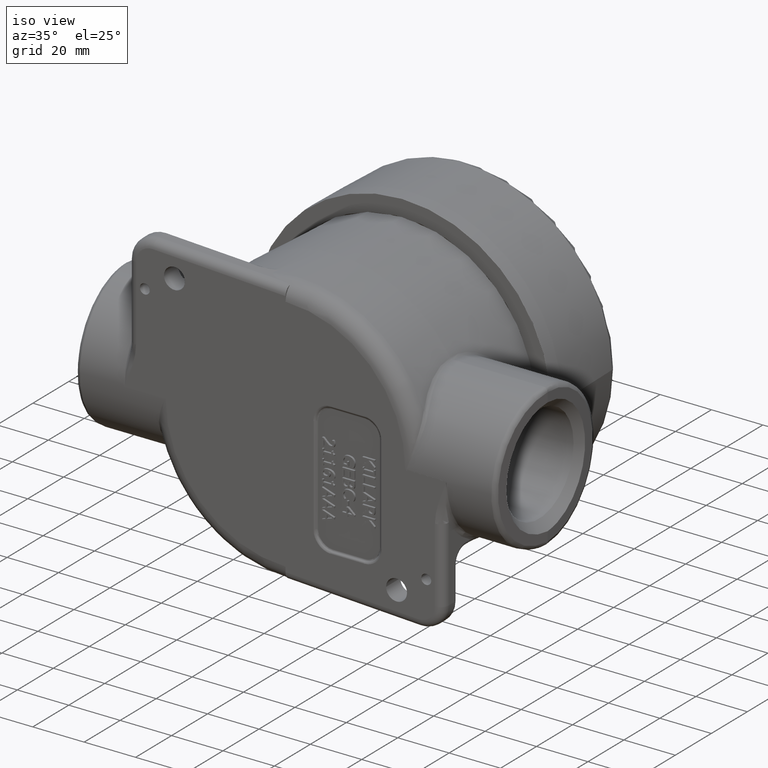
[diagram: clean part render]
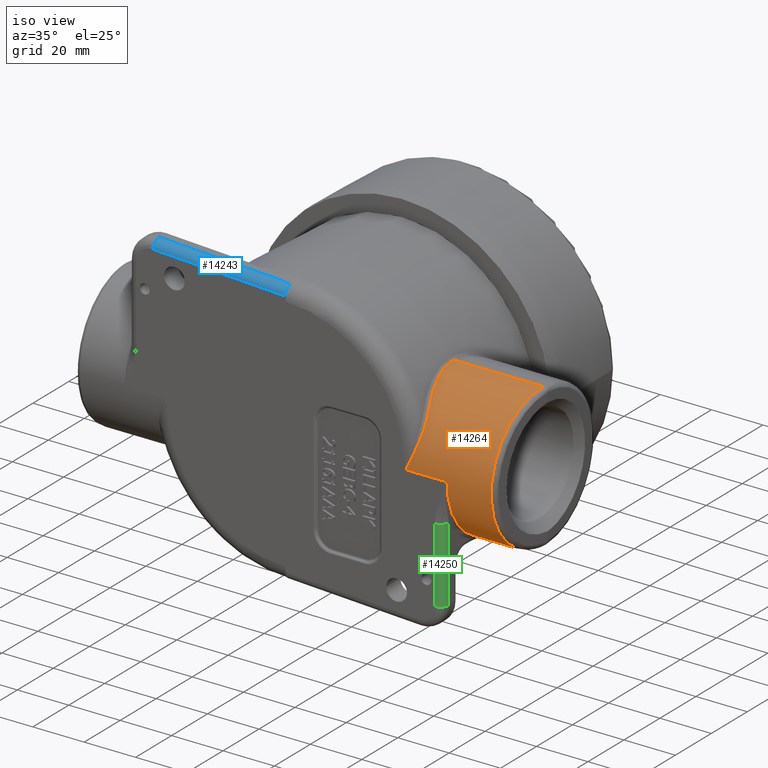
[diagram: same view with three faces highlighted in distinct colors, each labeled with its STEP entity id]
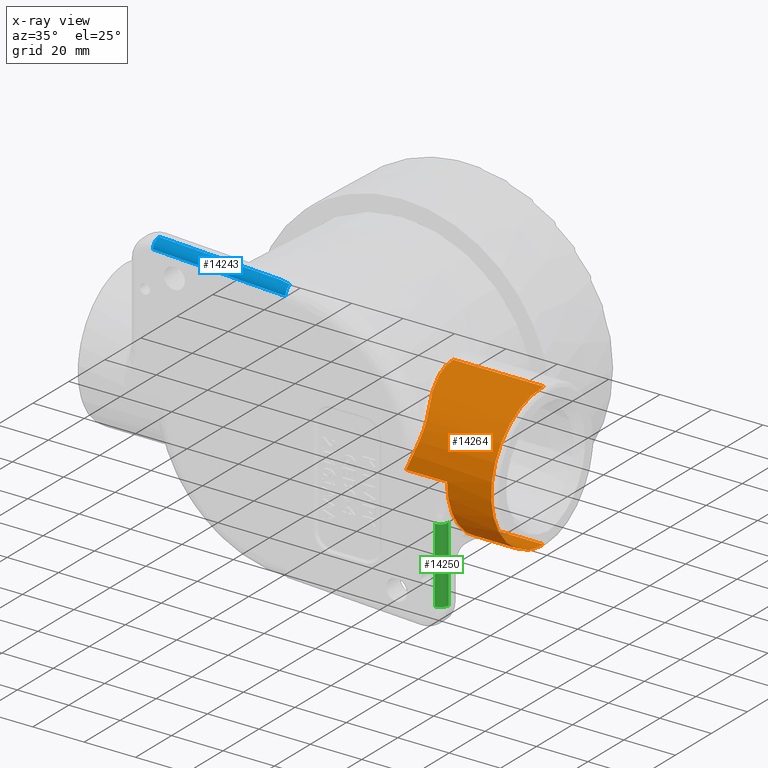
[diagram: x-ray of the same camera — body ghosted, the three highlighted faces saturated]
A machine part, iso view with three faces highlighted in distinct colors.
The next image is the same camera in x-ray (body ghosted, the three faces saturated) — at least one of them is partly hidden behind the body in this view.
Their STEP definitions:

[orange] entity #14264 — the highlighted cylindrical surface (partial cylindrical patch) has radius 27.7876 mm, axis along (-1, -0, -0).
#83=ELLIPSE('',#15379,1.09459284491548,1.094);
#526=LINE('',#47966,#1785);
#527=LINE('',#47969,#1786);
#528=LINE('',#47972,#1787);
#1785=VECTOR('',#17199,0.393700787401575);
#1786=VECTOR('',#17202,0.393700787401575);
#1787=VECTOR('',#17207,0.393700787401575);
#2763=CYLINDRICAL_SURFACE('',#15378,1.094);
#3533=FACE_OUTER_BOUND('',#4394,.T.);
#4394=EDGE_LOOP('',(#10907,#10908,#10909,#10910,#10911,#10912,#10913));
#5203=B_SPLINE_CURVE_WITH_KNOTS('',3,(#47847,#47848,#47849,#47850,#47851,
#47852,#47853,#47854,#47855,#47856,#47857,#47858,#47859,#47860,#47861,#47862,
#47863,#47864,#47865,#47866,#47867,#47868,#47869,#47870,#47871,#47872,#47873,
#47874,#47875,#47876,#47877,#47878,#47879,#47880,#47881,#47882,#47883,#47884,
#47885,#47886,#47887,#47888,#47889,#47890,#47891,#47892,#47893,#47894,#47895,
#47896,#47897,#47898),.UNSPECIFIED.,.F.,.F.,(4,3,3,3,3,3,3,3,3,3,3,3,3,
3,3,3,3,4),(-17.6097625151511,-17.6022137121534,-17.5884877715714,-17.5537234608959,
-17.5307036260634,-17.4514201109766,-17.2931641914485,-17.0730265519048,
-16.9769579946188,-16.7484873521986,-16.4661608610011,-16.3433577054272,
-16.0860000478141,-16.0272187015509,-15.9973988734256,-15.8687352714802,
-15.5570535972339,-15.3941147132039),.UNSPECIFIED.);
#5206=B_SPLINE_CURVE_WITH_KNOTS('',3,(#47954,#47955,#47956,#47957,#47958,
#47959,#47960),.UNSPECIFIED.,.F.,.F.,(4,1,1,1,4),(0.,1.05167906988002,1.75279844980004,
2.10335813976005,2.45391745310262),.UNSPECIFIED.);
#5629=CIRCLE('',#15149,1.094);
#6265=VERTEX_POINT('',#25277);
#6283=VERTEX_POINT('',#25418);
#6410=VERTEX_POINT('',#47654);
#6416=VERTEX_POINT('',#47838);
#6418=VERTEX_POINT('',#47846);
#6420=VERTEX_POINT('',#47965);
#6421=VERTEX_POINT('',#47967);
#7812=EDGE_CURVE('',#6265,#6283,#5629,.T.);
#8083=EDGE_CURVE('',#6416,#6418,#5203,.T.);
#8087=EDGE_CURVE('',#6418,#6410,#5206,.T.);
#8089=EDGE_CURVE('',#6410,#6420,#526,.T.);
#8091=EDGE_CURVE('',#6421,#6265,#527,.T.);
#8092=EDGE_CURVE('',#6420,#6421,#83,.T.);
#8093=EDGE_CURVE('',#6416,#6283,#528,.T.);
#10907=ORIENTED_EDGE('',*,*,#7812,.F.);
#10908=ORIENTED_EDGE('',*,*,#8091,.F.);
#10909=ORIENTED_EDGE('',*,*,#8092,.F.);
#10910=ORIENTED_EDGE('',*,*,#8089,.F.);
#10911=ORIENTED_EDGE('',*,*,#8087,.F.);
#10912=ORIENTED_EDGE('',*,*,#8083,.F.);
#10913=ORIENTED_EDGE('',*,*,#8093,.T.);
#14264=ADVANCED_FACE('',(#3533),#2763,.T.);
#15149=AXIS2_PLACEMENT_3D('',#25419,#16673,#16674);
#15378=AXIS2_PLACEMENT_3D('',#47970,#17203,#17204);
#15379=AXIS2_PLACEMENT_3D('',#47971,#17205,#17206);
#16673=DIRECTION('center_axis',(-1.,0.,0.));
#16674=DIRECTION('ref_axis',(0.,-0.707106781186547,-0.707106781186548));
#17199=DIRECTION('',(1.,0.,0.));
#17202=DIRECTION('',(-1.,0.,0.));
#17203=DIRECTION('center_axis',(-1.,0.,0.));
#17204=DIRECTION('ref_axis',(0.,-1.,0.));
#17205=DIRECTION('center_axis',(0.999458387729983,-0.0329079199613435,0.));
#17206=DIRECTION('ref_axis',(-0.0329079199613435,-0.999458387729983,0.));
#17207=DIRECTION('',(1.,0.,0.));
#25277=CARTESIAN_POINT('',(2.474,-2.4056,-1.094));
#25418=CARTESIAN_POINT('',(2.474,-3.4996,8.74191357972564E-17));
#25419=CARTESIAN_POINT('Origin',(2.474,-2.4056,0.));
#47654=CARTESIAN_POINT('',(1.80149193244747,-2.40560014194858,1.09399999999996));
#47838=CARTESIAN_POINT('',(1.84949217163543,-3.4996,-5.18683846593868E-17));
#47846=CARTESIAN_POINT('',(1.98953623249603,-3.21309440559439,0.738098086255322));
#47847=CARTESIAN_POINT('Ctrl Pts',(1.84949217163543,-3.4996,-1.4432899320127E-15));
#47848=CARTESIAN_POINT('Ctrl Pts',(1.84949217163543,-3.4996,0.000947538691732137));
#47849=CARTESIAN_POINT('Ctrl Pts',(1.84951636591202,-3.49959875518635,0.00189526428137604));
#47850=CARTESIAN_POINT('Ctrl Pts',(1.84956425740358,-3.49959627545496,0.00284151197069517));
#47851=CARTESIAN_POINT('Ctrl Pts',(1.84965133819874,-3.49959176657511,0.00456206813879618));
#47852=CARTESIAN_POINT('Ctrl Pts',(1.84981733744661,-3.49958316058594,0.00628025035351482));
#47853=CARTESIAN_POINT('Ctrl Pts',(1.85005242595574,-3.49957060232111,0.0079880467686052));
#47854=CARTESIAN_POINT('Ctrl Pts',(1.85064784525825,-3.49953879543564,0.0123134600100451));
#47855=CARTESIAN_POINT('Ctrl Pts',(1.85168600523321,-3.49948150054381,0.0165870111616431));
#47856=CARTESIAN_POINT('Ctrl Pts',(1.85294289081711,-3.49940166449037,0.0207802603343101));
#47857=CARTESIAN_POINT('Ctrl Pts',(1.85377516098104,-3.49934879956286,0.0235568982566806));
#47858=CARTESIAN_POINT('Ctrl Pts',(1.85471044491687,-3.49928581859802,0.0263128078055494));
#47859=CARTESIAN_POINT('Ctrl Pts',(1.85569364689107,-3.49921327626176,0.0290475409678088));
#47860=CARTESIAN_POINT('Ctrl Pts',(1.85907993133325,-3.49896343035916,0.0384663426014925));
#47861=CARTESIAN_POINT('Ctrl Pts',(1.86303478061342,-3.49860014261615,0.0476336412190956));
#47862=CARTESIAN_POINT('Ctrl Pts',(1.86706308297247,-3.49812416500056,0.0567784359132335));
#47863=CARTESIAN_POINT('Ctrl Pts',(1.87510388052378,-3.49717407751835,0.0750321408812056));
#47864=CARTESIAN_POINT('Ctrl Pts',(1.88343754571668,-3.49577479610927,0.0931962891400574));
#47865=CARTESIAN_POINT('Ctrl Pts',(1.89159913381085,-3.49390685132429,0.111433650182166));
#47866=CARTESIAN_POINT('Ctrl Pts',(1.90295209137058,-3.49130849698158,0.136802240648072));
#47867=CARTESIAN_POINT('Ctrl Pts',(1.91397354210411,-3.48780312261875,0.162312281575571));
#47868=CARTESIAN_POINT('Ctrl Pts',(1.92443334280542,-3.48335245381194,0.187860390266582));
#47869=CARTESIAN_POINT('Ctrl Pts',(1.92899802317974,-3.48141017200991,0.199009641927593));
#47870=CARTESIAN_POINT('Ctrl Pts',(1.93345512441152,-3.47928796935116,0.210166455628595));
#47871=CARTESIAN_POINT('Ctrl Pts',(1.93778269772174,-3.47698308436335,0.221323376959413));
#47872=CARTESIAN_POINT('Ctrl Pts',(1.94807455056348,-3.47150159730095,0.247856813662254));
#47873=CARTESIAN_POINT('Ctrl Pts',(1.95763739306372,-3.46498643917599,0.274390972221369));
#47874=CARTESIAN_POINT('Ctrl Pts',(1.96621946682119,-3.45742993253086,0.300804171937681));
#47875=CARTESIAN_POINT('Ctrl Pts',(1.97682453513755,-3.44809218136847,0.333443577675821));
#47876=CARTESIAN_POINT('Ctrl Pts',(1.98614051107161,-3.43708701701776,0.366159513558141));
#47877=CARTESIAN_POINT('Ctrl Pts',(1.99381232548003,-3.42436865197054,0.398652541456512));
#47878=CARTESIAN_POINT('Ctrl Pts',(1.99714932376997,-3.41883656266884,0.412785987960756));
#47879=CARTESIAN_POINT('Ctrl Pts',(2.00017557728207,-3.41298086611632,0.42687722400517));
#47880=CARTESIAN_POINT('Ctrl Pts',(2.00286380402465,-3.40680031467182,0.440901688094636));
#47881=CARTESIAN_POINT('Ctrl Pts',(2.00849750076778,-3.3938477790869,0.470292652931627));
#47882=CARTESIAN_POINT('Ctrl Pts',(2.01264401982792,-3.37946672525691,0.49938933258402));
#47883=CARTESIAN_POINT('Ctrl Pts',(2.01499421603847,-3.36386224893197,0.527738273407895));
#47884=CARTESIAN_POINT('Ctrl Pts',(2.01553100868152,-3.36029813456049,0.534213265923047));
#47885=CARTESIAN_POINT('Ctrl Pts',(2.01597425757186,-3.35667030764274,0.54064931957183));
#47886=CARTESIAN_POINT('Ctrl Pts',(2.01632059985477,-3.35298139778419,0.547041182746888));
#47887=CARTESIAN_POINT('Ctrl Pts',(2.01649629959635,-3.35111001060195,0.550283780499367));
#47888=CARTESIAN_POINT('Ctrl Pts',(2.01664706214212,-3.34922290426395,0.553515007148181));
#47889=CARTESIAN_POINT('Ctrl Pts',(2.01677243731637,-3.34731993585888,0.556735004563957));
#47890=CARTESIAN_POINT('Ctrl Pts',(2.01731339353673,-3.33910919874945,0.570628326283586));
#47891=CARTESIAN_POINT('Ctrl Pts',(2.01738390022322,-3.33058122531296,0.58434961117465));
#47892=CARTESIAN_POINT('Ctrl Pts',(2.01694160092463,-3.32171674350969,0.597913332624179));
#47893=CARTESIAN_POINT('Ctrl Pts',(2.01587015116091,-3.30024294293212,0.630770825702859));
#47894=CARTESIAN_POINT('Ctrl Pts',(2.01178657784997,-3.27679219023042,0.662703213189018));
#47895=CARTESIAN_POINT('Ctrl Pts',(2.00424807272908,-3.25227815603913,0.692723193831746));
#47896=CARTESIAN_POINT('Ctrl Pts',(2.00030714288577,-3.23946287139381,0.70841684074363));
#47897=CARTESIAN_POINT('Ctrl Pts',(1.99542263981614,-3.22635751146072,0.72358797711494));
#47898=CARTESIAN_POINT('Ctrl Pts',(1.98953623249603,-3.21309440559439,0.738098086255322));
#47954=CARTESIAN_POINT('Ctrl Pts',(1.98953623249603,-3.21309440559439,0.738098086255322));
#47955=CARTESIAN_POINT('Ctrl Pts',(1.95154277616295,-3.12748849928006,0.831752698998404));
#47956=CARTESIAN_POINT('Ctrl Pts',(1.88351769049416,-2.95584085973724,0.964173569228241));
#47957=CARTESIAN_POINT('Ctrl Pts',(1.82591486388446,-2.71195690753255,1.0566107250888));
#47958=CARTESIAN_POINT('Ctrl Pts',(1.80495435760838,-2.5373437318173,1.08879086955373));
#47959=CARTESIAN_POINT('Ctrl Pts',(1.80145582070624,-2.44964349667338,1.09399999440367));
#47960=CARTESIAN_POINT('Ctrl Pts',(1.80145581694766,-2.40560014195169,1.09399999999999));
#47965=CARTESIAN_POINT('',(3.18746190348132,-2.4056,1.094));
#47966=CARTESIAN_POINT('',(3.25,-2.4056,1.094));
#47967=CARTESIAN_POINT('',(3.18746190348132,-2.4056,-1.094));
#47969=CARTESIAN_POINT('',(3.25,-2.4056,-1.094));
#47970=CARTESIAN_POINT('Origin',(3.25,-2.4056,0.));
#47971=CARTESIAN_POINT('Origin',(3.18746190348132,-2.4056,0.));
#47972=CARTESIAN_POINT('',(3.25,-3.4996,0.));

[blue] entity #14243 — the highlighted cylindrical surface (edge-blend (fillet) strip) has radius 3.175 mm, axis along (-0.9986, -0, 0.0523).
#80=ELLIPSE('',#15343,0.12517154324974,0.125);
#463=LINE('',#25592,#1722);
#511=LINE('',#47286,#1770);
#1722=VECTOR('',#16716,0.393700787401575);
#1770=VECTOR('',#17120,0.393700787401575);
#2757=CYLINDRICAL_SURFACE('',#15342,0.125);
#3512=FACE_OUTER_BOUND('',#4364,.T.);
#4364=EDGE_LOOP('',(#10782,#10783,#10784,#10785,#10786));
#5186=B_SPLINE_CURVE_WITH_KNOTS('',3,(#47278,#47279,#47280,#47281,#47282,
#47283),.UNSPECIFIED.,.F.,.F.,(4,2,4),(-2.2013517495294,-2.02590437447604,
-1.83346366103261),.UNSPECIFIED.);
#5745=CIRCLE('',#15344,0.125);
#6300=VERTEX_POINT('',#25589);
#6301=VERTEX_POINT('',#25591);
#6385=VERTEX_POINT('',#47275);
#6386=VERTEX_POINT('',#47276);
#6387=VERTEX_POINT('',#47284);
#7837=EDGE_CURVE('',#6301,#6300,#463,.T.);
#8033=EDGE_CURVE('',#6385,#6386,#80,.T.);
#8034=EDGE_CURVE('',#6301,#6386,#5186,.T.);
#8035=EDGE_CURVE('',#6300,#6387,#5745,.T.);
#8036=EDGE_CURVE('',#6387,#6385,#511,.T.);
#10782=ORIENTED_EDGE('',*,*,#8033,.T.);
#10783=ORIENTED_EDGE('',*,*,#8034,.F.);
#10784=ORIENTED_EDGE('',*,*,#7837,.T.);
#10785=ORIENTED_EDGE('',*,*,#8035,.T.);
#10786=ORIENTED_EDGE('',*,*,#8036,.T.);
#14243=ADVANCED_FACE('',(#3512),#2757,.T.);
#15342=AXIS2_PLACEMENT_3D('',#47274,#17114,#17115);
#15343=AXIS2_PLACEMENT_3D('',#47277,#17116,#17117);
#15344=AXIS2_PLACEMENT_3D('',#47285,#17118,#17119);
#16716=DIRECTION('',(-0.998629534754574,0.,0.0523359562429437));
#17114=DIRECTION('center_axis',(-0.998629534754574,0.,0.0523359562429437));
#17115=DIRECTION('ref_axis',(0.037007109559268,-0.70710678118655,0.706137715918124));
#17116=DIRECTION('center_axis',(-1.,0.,-1.22464679914735E-16));
#17117=DIRECTION('ref_axis',(-1.23459897758822E-16,2.17375333965554E-14,
1.));
#17118=DIRECTION('center_axis',(0.998629534754574,0.,-0.0523359562429468));
#17119=DIRECTION('ref_axis',(0.0523359562429468,0.,0.998629534754574));
#17120=DIRECTION('',(0.998629534754574,0.,-0.0523359562429437));
#25589=CARTESIAN_POINT('',(-2.02463569619011,-3.375,2.14187186856627));
#25591=CARTESIAN_POINT('',(-0.160836073889775,-3.37499999999993,2.04419426933294));
#25592=CARTESIAN_POINT('',(-0.47651103379784,-3.375,2.06073809295698));
#47274=CARTESIAN_POINT('Origin',(-0.483053028328208,-3.375,1.93590940111266));
#47275=CARTESIAN_POINT('',(-2.33980241585058E-16,-3.5,1.91059366462203));
#47276=CARTESIAN_POINT('',(-2.48963261759131E-16,-3.40141103358391,2.0329393089703));
#47277=CARTESIAN_POINT('Origin',(-2.62257407391769E-16,-3.375,1.91059366462203));
#47278=CARTESIAN_POINT('Ctrl Pts',(-0.16083607388977,-3.37499999999986,
2.04419426933294));
#47279=CARTESIAN_POINT('Ctrl Pts',(-0.136052168944777,-3.38060984211288,
2.04289539991281));
#47280=CARTESIAN_POINT('Ctrl Pts',(-0.110917264090433,-3.38568377799952,
2.0411981682686));
#47281=CARTESIAN_POINT('Ctrl Pts',(-0.0567893021808137,-3.39485823244975,
2.03724653161475));
#47282=CARTESIAN_POINT('Ctrl Pts',(-0.0284683725121732,-3.39867171065721,
2.0350242412186));
#47283=CARTESIAN_POINT('Ctrl Pts',(-4.64140974123558E-15,-3.40141103358391,
2.0329393089703));
#47284=CARTESIAN_POINT('',(-2.03117769072048,-3.5,2.01704317672195));
#47285=CARTESIAN_POINT('Origin',(-2.03117769072048,-3.375,2.01704317672195));
#47286=CARTESIAN_POINT('',(-0.483053028328208,-3.5,1.93590940111266));

[green] entity #14250 — the highlighted cylindrical surface (edge-blend (fillet) strip) has radius 3.175 mm, axis along (-0, -0, 1).
#455=LINE('',#25416,#1714);
#515=LINE('',#47411,#1774);
#1714=VECTOR('',#16670,0.393700787401575);
#1774=VECTOR('',#17154,0.393700787401575);
#2760=CYLINDRICAL_SURFACE('',#15358,0.125);
#3519=FACE_OUTER_BOUND('',#4371,.T.);
#4371=EDGE_LOOP('',(#10811,#10812,#10813,#10814));
#5751=CIRCLE('',#15356,0.125);
#5753=CIRCLE('',#15359,0.125);
#6281=VERTEX_POINT('',#25410);
#6282=VERTEX_POINT('',#25414);
#6395=VERTEX_POINT('',#47405);
#6396=VERTEX_POINT('',#47409);
#7811=EDGE_CURVE('',#6281,#6282,#455,.T.);
#8049=EDGE_CURVE('',#6281,#6395,#5751,.T.);
#8051=EDGE_CURVE('',#6282,#6396,#5753,.T.);
#8052=EDGE_CURVE('',#6396,#6395,#515,.T.);
#10811=ORIENTED_EDGE('',*,*,#8051,.T.);
#10812=ORIENTED_EDGE('',*,*,#8052,.T.);
#10813=ORIENTED_EDGE('',*,*,#8049,.F.);
#10814=ORIENTED_EDGE('',*,*,#7811,.T.);
#14250=ADVANCED_FACE('',(#3519),#2760,.T.);
#15356=AXIS2_PLACEMENT_3D('',#47406,#17146,#17147);
#15358=AXIS2_PLACEMENT_3D('',#47408,#17150,#17151);
#15359=AXIS2_PLACEMENT_3D('',#47410,#17152,#17153);
#16670=DIRECTION('',(0.,0.,1.));
#17146=DIRECTION('center_axis',(0.,0.,-1.));
#17147=DIRECTION('ref_axis',(1.,0.,0.));
#17150=DIRECTION('center_axis',(0.,0.,1.));
#17151=DIRECTION('ref_axis',(0.707106781186546,-0.707106781186549,0.));
#17152=DIRECTION('center_axis',(0.,0.,-1.));
#17153=DIRECTION('ref_axis',(1.,0.,0.));
#17154=DIRECTION('',(0.,0.,-1.));
#25410=CARTESIAN_POINT('',(2.414,-3.375,-1.77237894070708));
#25414=CARTESIAN_POINT('',(2.414,-3.375,-0.626082774080235));
#25416=CARTESIAN_POINT('',(2.414,-3.375,-1.06111134661056));
#47405=CARTESIAN_POINT('',(2.289,-3.5,-1.77237894070708));
#47406=CARTESIAN_POINT('Origin',(2.289,-3.375,-1.77237894070708));
#47408=CARTESIAN_POINT('Origin',(2.289,-3.375,-1.06111134661056));
#47409=CARTESIAN_POINT('',(2.289,-3.5,-0.626082774080235));
#47410=CARTESIAN_POINT('Origin',(2.289,-3.375,-0.626082774080235));
#47411=CARTESIAN_POINT('',(2.289,-3.5,-1.06111134661056));